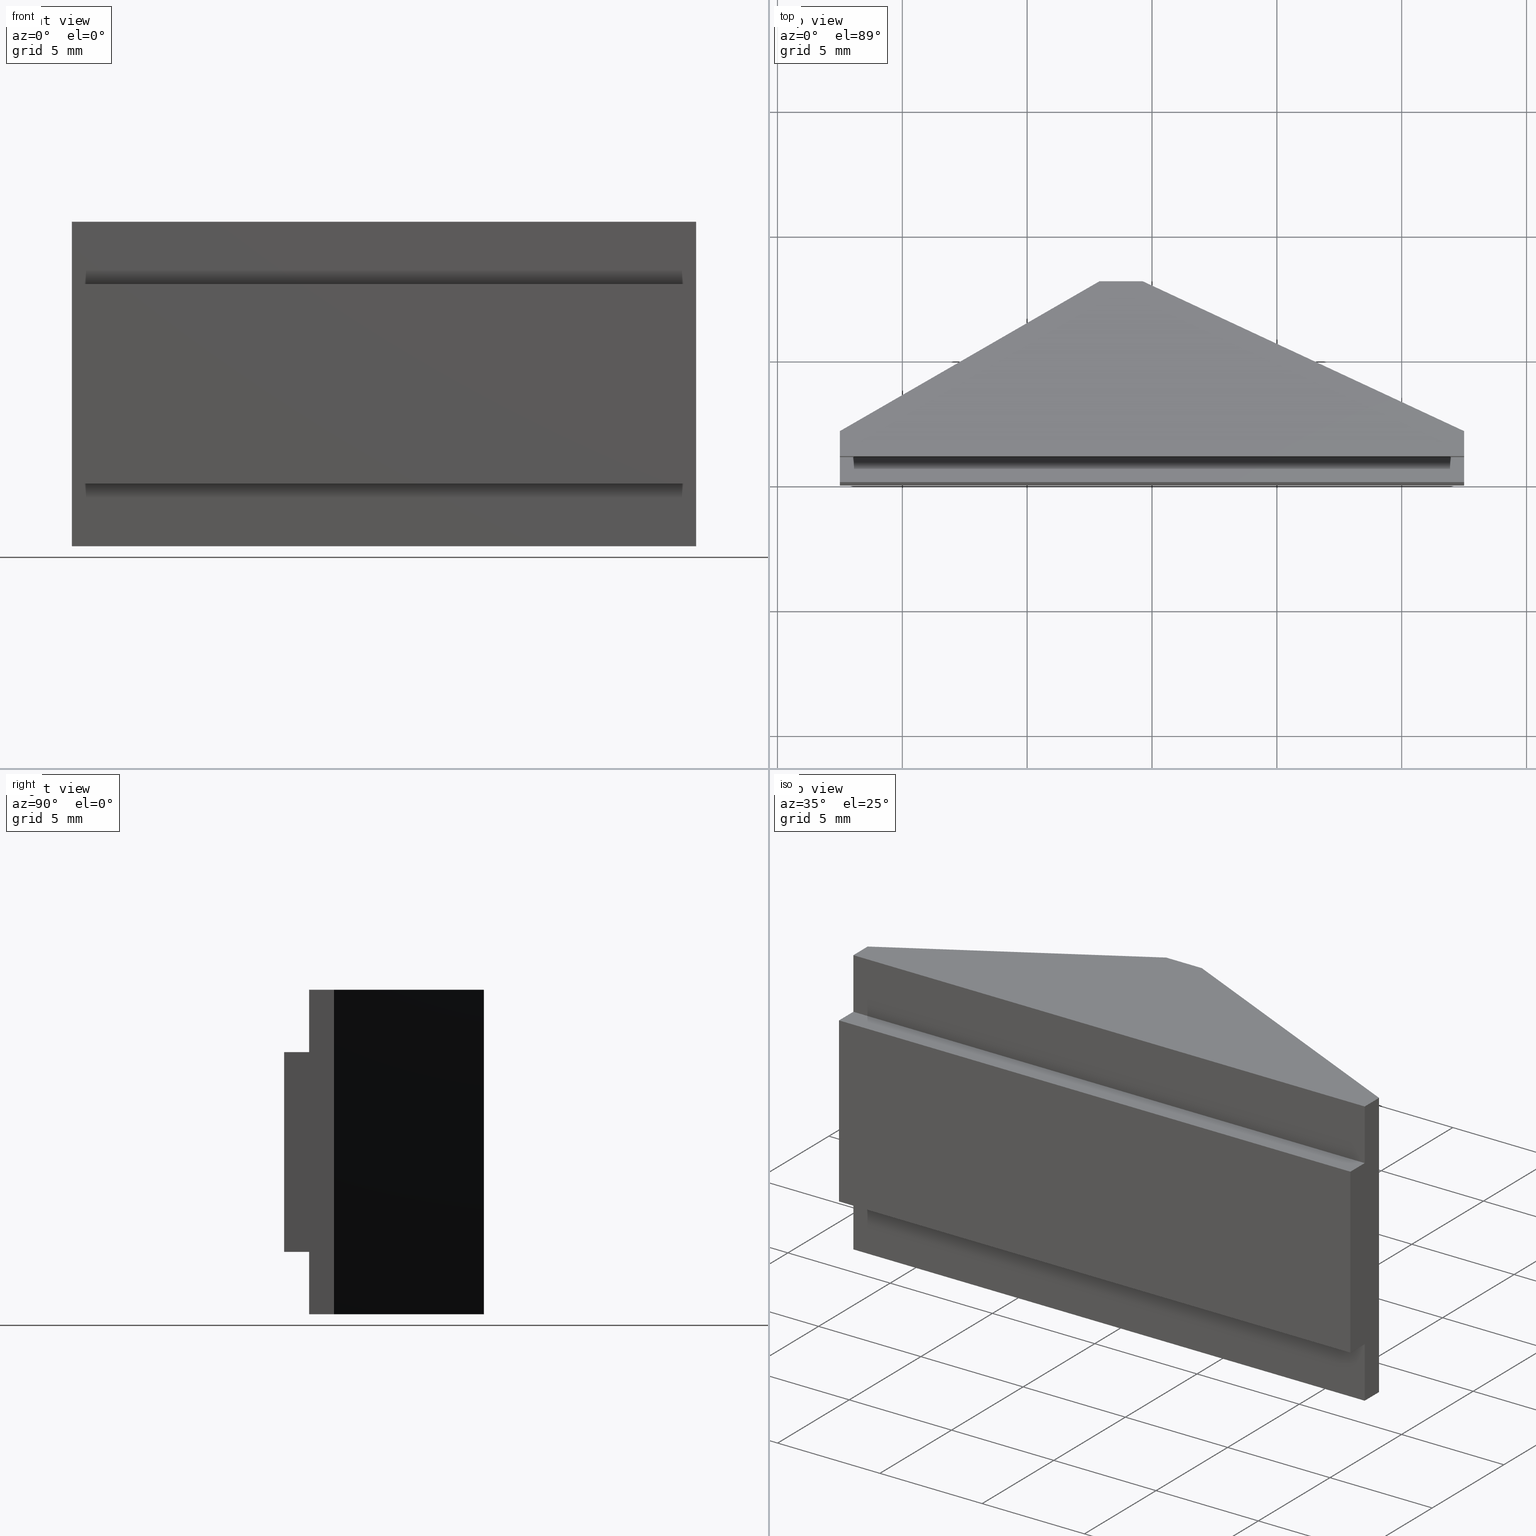
[diagram: canonical four-view strip — front | top / right | iso, engineering-drawing reading convention]
A machine part, canonical four-view strip (front | top / right | iso — engineering-drawing reading convention). The complete STEP part file that produces these views, byte-faithful:
ISO-10303-21;
HEADER;
/* Generated by software containing ST-Developer
 * from STEP Tools, Inc. (www.steptools.com) 
 */

FILE_DESCRIPTION(
/* description */ ('WKZ-0462'),
/* implementation_level */ '2;1');

FILE_NAME(
/* name */ 'E_3_01_06_07_00_WKZ-0462.stp',
/* time_stamp */ '2025-11-12T14:13:11+01:00',
/* author */ ('d.fischer'),
/* organization */ (''),
/* preprocessor_version */ 'ST-DEVELOPER v20',
/* originating_system */ 'Autodesk Inventor 2025',
/* authorisation */ '');

FILE_SCHEMA (('AUTOMOTIVE_DESIGN { 1 0 10303 214 3 1 1 }'));
ENDSEC;

DATA;
#10=MECHANICAL_DESIGN_GEOMETRIC_PRESENTATION_REPRESENTATION('',(#13),#390);
#11=SHAPE_REPRESENTATION_RELATIONSHIP('SRR','None',#397,#12);
#12=ADVANCED_BREP_SHAPE_REPRESENTATION('',(#14),#389);
#13=STYLED_ITEM('',(#406),#14);
#14=MANIFOLD_SOLID_BREP('Volumenk\X\F6rper1',#233);
#15=FACE_OUTER_BOUND('',#27,.T.);
#16=FACE_OUTER_BOUND('',#28,.T.);
#17=FACE_OUTER_BOUND('',#29,.T.);
#18=FACE_OUTER_BOUND('',#30,.T.);
#19=FACE_OUTER_BOUND('',#31,.T.);
#20=FACE_OUTER_BOUND('',#32,.T.);
#21=FACE_OUTER_BOUND('',#33,.T.);
#22=FACE_OUTER_BOUND('',#34,.T.);
#23=FACE_OUTER_BOUND('',#35,.T.);
#24=FACE_OUTER_BOUND('',#36,.T.);
#25=FACE_OUTER_BOUND('',#37,.T.);
#26=FACE_OUTER_BOUND('',#38,.T.);
#27=EDGE_LOOP('',(#149,#150,#151,#152));
#28=EDGE_LOOP('',(#153,#154,#155,#156));
#29=EDGE_LOOP('',(#157,#158,#159,#160));
#30=EDGE_LOOP('',(#161,#162,#163,#164));
#31=EDGE_LOOP('',(#165,#166,#167,#168,#169,#170,#171,#172));
#32=EDGE_LOOP('',(#173,#174,#175,#176,#177,#178,#179,#180));
#33=EDGE_LOOP('',(#181,#182,#183,#184,#185,#186));
#34=EDGE_LOOP('',(#187,#188,#189,#190,#191,#192));
#35=EDGE_LOOP('',(#193,#194,#195,#196));
#36=EDGE_LOOP('',(#197,#198,#199,#200));
#37=EDGE_LOOP('',(#201,#202,#203,#204));
#38=EDGE_LOOP('',(#205,#206,#207,#208));
#39=LINE('',#328,#69);
#40=LINE('',#330,#70);
#41=LINE('',#332,#71);
#42=LINE('',#333,#72);
#43=LINE('',#336,#73);
#44=LINE('',#338,#74);
#45=LINE('',#339,#75);
#46=LINE('',#343,#76);
#47=LINE('',#345,#77);
#48=LINE('',#347,#78);
#49=LINE('',#348,#79);
#50=LINE('',#351,#80);
#51=LINE('',#353,#81);
#52=LINE('',#354,#82);
#53=LINE('',#356,#83);
#54=LINE('',#358,#84);
#55=LINE('',#360,#85);
#56=LINE('',#361,#86);
#57=LINE('',#364,#87);
#58=LINE('',#366,#88);
#59=LINE('',#367,#89);
#60=LINE('',#368,#90);
#61=LINE('',#371,#91);
#62=LINE('',#373,#92);
#63=LINE('',#374,#93);
#64=LINE('',#377,#94);
#65=LINE('',#379,#95);
#66=LINE('',#380,#96);
#67=LINE('',#382,#97);
#68=LINE('',#384,#98);
#69=VECTOR('',#272,10.);
#70=VECTOR('',#273,10.);
#71=VECTOR('',#274,10.);
#72=VECTOR('',#275,10.);
#73=VECTOR('',#278,10.);
#74=VECTOR('',#279,10.);
#75=VECTOR('',#280,10.);
#76=VECTOR('',#283,10.);
#77=VECTOR('',#284,10.);
#78=VECTOR('',#285,10.);
#79=VECTOR('',#286,10.);
#80=VECTOR('',#289,10.);
#81=VECTOR('',#290,10.);
#82=VECTOR('',#291,10.);
#83=VECTOR('',#294,10.);
#84=VECTOR('',#295,10.);
#85=VECTOR('',#296,10.);
#86=VECTOR('',#297,10.);
#87=VECTOR('',#300,10.);
#88=VECTOR('',#301,10.);
#89=VECTOR('',#302,10.);
#90=VECTOR('',#303,10.);
#91=VECTOR('',#306,10.);
#92=VECTOR('',#307,10.);
#93=VECTOR('',#308,10.);
#94=VECTOR('',#311,10.);
#95=VECTOR('',#312,10.);
#96=VECTOR('',#313,10.);
#97=VECTOR('',#316,10.);
#98=VECTOR('',#319,10.);
#99=VERTEX_POINT('',#326);
#100=VERTEX_POINT('',#327);
#101=VERTEX_POINT('',#329);
#102=VERTEX_POINT('',#331);
#103=VERTEX_POINT('',#335);
#104=VERTEX_POINT('',#337);
#105=VERTEX_POINT('',#341);
#106=VERTEX_POINT('',#342);
#107=VERTEX_POINT('',#344);
#108=VERTEX_POINT('',#346);
#109=VERTEX_POINT('',#350);
#110=VERTEX_POINT('',#352);
#111=VERTEX_POINT('',#357);
#112=VERTEX_POINT('',#359);
#113=VERTEX_POINT('',#363);
#114=VERTEX_POINT('',#365);
#115=VERTEX_POINT('',#370);
#116=VERTEX_POINT('',#372);
#117=VERTEX_POINT('',#376);
#118=VERTEX_POINT('',#378);
#119=EDGE_CURVE('',#99,#100,#39,.T.);
#120=EDGE_CURVE('',#101,#99,#40,.T.);
#121=EDGE_CURVE('',#102,#101,#41,.T.);
#122=EDGE_CURVE('',#100,#102,#42,.T.);
#123=EDGE_CURVE('',#103,#99,#43,.T.);
#124=EDGE_CURVE('',#104,#103,#44,.T.);
#125=EDGE_CURVE('',#101,#104,#45,.T.);
#126=EDGE_CURVE('',#105,#106,#46,.T.);
#127=EDGE_CURVE('',#107,#105,#47,.T.);
#128=EDGE_CURVE('',#108,#107,#48,.T.);
#129=EDGE_CURVE('',#106,#108,#49,.T.);
#130=EDGE_CURVE('',#106,#109,#50,.T.);
#131=EDGE_CURVE('',#110,#108,#51,.T.);
#132=EDGE_CURVE('',#109,#110,#52,.T.);
#133=EDGE_CURVE('',#105,#104,#53,.T.);
#134=EDGE_CURVE('',#111,#109,#54,.T.);
#135=EDGE_CURVE('',#112,#111,#55,.T.);
#136=EDGE_CURVE('',#102,#112,#56,.T.);
#137=EDGE_CURVE('',#113,#100,#57,.T.);
#138=EDGE_CURVE('',#113,#114,#58,.T.);
#139=EDGE_CURVE('',#110,#114,#59,.T.);
#140=EDGE_CURVE('',#103,#107,#60,.T.);
#141=EDGE_CURVE('',#114,#115,#61,.T.);
#142=EDGE_CURVE('',#115,#116,#62,.T.);
#143=EDGE_CURVE('',#116,#111,#63,.T.);
#144=EDGE_CURVE('',#112,#117,#64,.T.);
#145=EDGE_CURVE('',#117,#118,#65,.T.);
#146=EDGE_CURVE('',#118,#113,#66,.T.);
#147=EDGE_CURVE('',#117,#116,#67,.T.);
#148=EDGE_CURVE('',#118,#115,#68,.T.);
#149=ORIENTED_EDGE('',*,*,#119,.F.);
#150=ORIENTED_EDGE('',*,*,#120,.F.);
#151=ORIENTED_EDGE('',*,*,#121,.F.);
#152=ORIENTED_EDGE('',*,*,#122,.F.);
#153=ORIENTED_EDGE('',*,*,#123,.F.);
#154=ORIENTED_EDGE('',*,*,#124,.F.);
#155=ORIENTED_EDGE('',*,*,#125,.F.);
#156=ORIENTED_EDGE('',*,*,#120,.T.);
#157=ORIENTED_EDGE('',*,*,#126,.F.);
#158=ORIENTED_EDGE('',*,*,#127,.F.);
#159=ORIENTED_EDGE('',*,*,#128,.F.);
#160=ORIENTED_EDGE('',*,*,#129,.F.);
#161=ORIENTED_EDGE('',*,*,#130,.F.);
#162=ORIENTED_EDGE('',*,*,#129,.T.);
#163=ORIENTED_EDGE('',*,*,#131,.F.);
#164=ORIENTED_EDGE('',*,*,#132,.F.);
#165=ORIENTED_EDGE('',*,*,#121,.T.);
#166=ORIENTED_EDGE('',*,*,#125,.T.);
#167=ORIENTED_EDGE('',*,*,#133,.F.);
#168=ORIENTED_EDGE('',*,*,#126,.T.);
#169=ORIENTED_EDGE('',*,*,#130,.T.);
#170=ORIENTED_EDGE('',*,*,#134,.F.);
#171=ORIENTED_EDGE('',*,*,#135,.F.);
#172=ORIENTED_EDGE('',*,*,#136,.F.);
#173=ORIENTED_EDGE('',*,*,#123,.T.);
#174=ORIENTED_EDGE('',*,*,#119,.T.);
#175=ORIENTED_EDGE('',*,*,#137,.F.);
#176=ORIENTED_EDGE('',*,*,#138,.T.);
#177=ORIENTED_EDGE('',*,*,#139,.F.);
#178=ORIENTED_EDGE('',*,*,#131,.T.);
#179=ORIENTED_EDGE('',*,*,#128,.T.);
#180=ORIENTED_EDGE('',*,*,#140,.F.);
#181=ORIENTED_EDGE('',*,*,#132,.T.);
#182=ORIENTED_EDGE('',*,*,#139,.T.);
#183=ORIENTED_EDGE('',*,*,#141,.T.);
#184=ORIENTED_EDGE('',*,*,#142,.T.);
#185=ORIENTED_EDGE('',*,*,#143,.T.);
#186=ORIENTED_EDGE('',*,*,#134,.T.);
#187=ORIENTED_EDGE('',*,*,#122,.T.);
#188=ORIENTED_EDGE('',*,*,#136,.T.);
#189=ORIENTED_EDGE('',*,*,#144,.T.);
#190=ORIENTED_EDGE('',*,*,#145,.T.);
#191=ORIENTED_EDGE('',*,*,#146,.T.);
#192=ORIENTED_EDGE('',*,*,#137,.T.);
#193=ORIENTED_EDGE('',*,*,#135,.T.);
#194=ORIENTED_EDGE('',*,*,#143,.F.);
#195=ORIENTED_EDGE('',*,*,#147,.F.);
#196=ORIENTED_EDGE('',*,*,#144,.F.);
#197=ORIENTED_EDGE('',*,*,#147,.T.);
#198=ORIENTED_EDGE('',*,*,#142,.F.);
#199=ORIENTED_EDGE('',*,*,#148,.F.);
#200=ORIENTED_EDGE('',*,*,#145,.F.);
#201=ORIENTED_EDGE('',*,*,#148,.T.);
#202=ORIENTED_EDGE('',*,*,#141,.F.);
#203=ORIENTED_EDGE('',*,*,#138,.F.);
#204=ORIENTED_EDGE('',*,*,#146,.F.);
#205=ORIENTED_EDGE('',*,*,#124,.T.);
#206=ORIENTED_EDGE('',*,*,#140,.T.);
#207=ORIENTED_EDGE('',*,*,#127,.T.);
#208=ORIENTED_EDGE('',*,*,#133,.T.);
#209=PLANE('',#256);
#210=PLANE('',#257);
#211=PLANE('',#258);
#212=PLANE('',#259);
#213=PLANE('',#260);
#214=PLANE('',#261);
#215=PLANE('',#262);
#216=PLANE('',#263);
#217=PLANE('',#264);
#218=PLANE('',#265);
#219=PLANE('',#266);
#220=PLANE('',#267);
#221=ADVANCED_FACE('',(#15),#209,.F.);
#222=ADVANCED_FACE('',(#16),#210,.F.);
#223=ADVANCED_FACE('',(#17),#211,.F.);
#224=ADVANCED_FACE('',(#18),#212,.F.);
#225=ADVANCED_FACE('',(#19),#213,.T.);
#226=ADVANCED_FACE('',(#20),#214,.T.);
#227=ADVANCED_FACE('',(#21),#215,.T.);
#228=ADVANCED_FACE('',(#22),#216,.T.);
#229=ADVANCED_FACE('',(#23),#217,.T.);
#230=ADVANCED_FACE('',(#24),#218,.T.);
#231=ADVANCED_FACE('',(#25),#219,.T.);
#232=ADVANCED_FACE('',(#26),#220,.T.);
#233=CLOSED_SHELL('',(#221,#222,#223,#224,#225,#226,#227,#228,#229,#230,
#231,#232));
#234=DERIVED_UNIT_ELEMENT(#237,1.);
#235=DERIVED_UNIT_ELEMENT(#392,-3.);
#236=DIMENSIONAL_EXPONENTS(0.,1.,0.,0.,0.,0.,0.);
#237=(
CONVERSION_BASED_UNIT('gram',#239)
MASS_UNIT()
NAMED_UNIT(#236)
);
#238=(
MASS_UNIT()
NAMED_UNIT(*)
SI_UNIT(.KILO.,.GRAM.)
);
#239=MASS_MEASURE_WITH_UNIT(MASS_MEASURE(0.001),#238);
#240=DERIVED_UNIT((#234,#235));
#241=MEASURE_REPRESENTATION_ITEM('density measure',
POSITIVE_RATIO_MEASURE(1.),#240);
#242=PROPERTY_DEFINITION_REPRESENTATION(#247,#244);
#243=PROPERTY_DEFINITION_REPRESENTATION(#248,#245);
#244=REPRESENTATION('material name',(#246),#389);
#245=REPRESENTATION('density',(#241),#389);
#246=DESCRIPTIVE_REPRESENTATION_ITEM('Generisch','Generisch');
#247=PROPERTY_DEFINITION('material property','material name',#399);
#248=PROPERTY_DEFINITION('material property','density of part',#399);
#249=DATE_TIME_ROLE('creation_date');
#250=APPLIED_DATE_AND_TIME_ASSIGNMENT(#251,#249,(#399));
#251=DATE_AND_TIME(#252,#253);
#252=CALENDAR_DATE(2024,24,6);
#253=LOCAL_TIME(0,0,0.,#254);
#254=COORDINATED_UNIVERSAL_TIME_OFFSET(0,0,.BEHIND.);
#255=AXIS2_PLACEMENT_3D('',#324,#268,#269);
#256=AXIS2_PLACEMENT_3D('',#325,#270,#271);
#257=AXIS2_PLACEMENT_3D('',#334,#276,#277);
#258=AXIS2_PLACEMENT_3D('',#340,#281,#282);
#259=AXIS2_PLACEMENT_3D('',#349,#287,#288);
#260=AXIS2_PLACEMENT_3D('',#355,#292,#293);
#261=AXIS2_PLACEMENT_3D('',#362,#298,#299);
#262=AXIS2_PLACEMENT_3D('',#369,#304,#305);
#263=AXIS2_PLACEMENT_3D('',#375,#309,#310);
#264=AXIS2_PLACEMENT_3D('',#381,#314,#315);
#265=AXIS2_PLACEMENT_3D('',#383,#317,#318);
#266=AXIS2_PLACEMENT_3D('',#385,#320,#321);
#267=AXIS2_PLACEMENT_3D('',#386,#322,#323);
#268=DIRECTION('axis',(0.,0.,1.));
#269=DIRECTION('refdir',(1.,0.,0.));
#270=DIRECTION('center_axis',(0.,1.,1.66533453693773E-16));
#271=DIRECTION('ref_axis',(0.,1.66533453693773E-16,-1.));
#272=DIRECTION('',(0.,1.66533453693773E-16,-1.));
#273=DIRECTION('',(1.,0.,0.));
#274=DIRECTION('',(0.,-1.66533453693773E-16,1.));
#275=DIRECTION('',(-1.,0.,0.));
#276=DIRECTION('center_axis',(0.,0.,1.));
#277=DIRECTION('ref_axis',(0.,1.,0.));
#278=DIRECTION('',(0.,1.,0.));
#279=DIRECTION('',(1.,0.,0.));
#280=DIRECTION('',(0.,-1.,0.));
#281=DIRECTION('center_axis',(0.,0.,-1.));
#282=DIRECTION('ref_axis',(0.,-1.,0.));
#283=DIRECTION('',(0.,1.,0.));
#284=DIRECTION('',(-1.,0.,0.));
#285=DIRECTION('',(0.,-1.,0.));
#286=DIRECTION('',(1.,0.,0.));
#287=DIRECTION('center_axis',(0.,1.,-1.66533453693773E-16));
#288=DIRECTION('ref_axis',(0.,-1.66533453693773E-16,-1.));
#289=DIRECTION('',(0.,1.66533453693773E-16,1.));
#290=DIRECTION('',(0.,-1.66533453693773E-16,-1.));
#291=DIRECTION('',(1.,0.,0.));
#292=DIRECTION('center_axis',(-1.,0.,0.));
#293=DIRECTION('ref_axis',(0.,-1.,0.));
#294=DIRECTION('',(0.,0.,-1.));
#295=DIRECTION('',(0.,-1.,0.));
#296=DIRECTION('',(0.,0.,1.));
#297=DIRECTION('',(0.,1.,0.));
#298=DIRECTION('center_axis',(1.,0.,0.));
#299=DIRECTION('ref_axis',(0.,1.,0.));
#300=DIRECTION('',(0.,-1.,0.));
#301=DIRECTION('',(0.,0.,1.));
#302=DIRECTION('',(0.,1.,0.));
#303=DIRECTION('',(0.,0.,1.));
#304=DIRECTION('center_axis',(0.,0.,1.));
#305=DIRECTION('ref_axis',(1.,0.,0.));
#306=DIRECTION('',(-0.90630778703665,0.422618261740699,0.));
#307=DIRECTION('',(-1.,0.,0.));
#308=DIRECTION('',(-0.866025403784438,-0.5,0.));
#309=DIRECTION('center_axis',(0.,0.,-1.));
#310=DIRECTION('ref_axis',(-1.,0.,0.));
#311=DIRECTION('',(0.866025403784438,0.5,0.));
#312=DIRECTION('',(1.,0.,0.));
#313=DIRECTION('',(0.90630778703665,-0.422618261740699,0.));
#314=DIRECTION('center_axis',(-0.5,0.866025403784438,0.));
#315=DIRECTION('ref_axis',(-0.866025403784438,-0.5,0.));
#316=DIRECTION('',(0.,0.,1.));
#317=DIRECTION('center_axis',(0.,1.,0.));
#318=DIRECTION('ref_axis',(-1.,0.,0.));
#319=DIRECTION('',(0.,0.,1.));
#320=DIRECTION('center_axis',(0.422618261740699,0.90630778703665,0.));
#321=DIRECTION('ref_axis',(-0.90630778703665,0.422618261740699,0.));
#322=DIRECTION('center_axis',(0.,-1.,0.));
#323=DIRECTION('ref_axis',(1.,0.,0.));
#324=CARTESIAN_POINT('',(0.,0.,0.));
#325=CARTESIAN_POINT('Origin',(0.,1.,-4.));
#326=CARTESIAN_POINT('',(12.5,1.,-4.));
#327=CARTESIAN_POINT('',(12.5,1.,-6.5));
#328=CARTESIAN_POINT('',(12.5,1.,-2.));
#329=CARTESIAN_POINT('',(-12.5,1.,-4.));
#330=CARTESIAN_POINT('',(0.,1.,-4.));
#331=CARTESIAN_POINT('',(-12.5,1.,-6.5));
#332=CARTESIAN_POINT('',(-12.5,1.,-2.));
#333=CARTESIAN_POINT('',(0.,1.,-6.5));
#334=CARTESIAN_POINT('Origin',(0.,1.38777878078145E-16,-4.));
#335=CARTESIAN_POINT('',(12.5,1.22464679914736E-16,-4.));
#336=CARTESIAN_POINT('',(12.5,6.24500451351651E-16,-4.));
#337=CARTESIAN_POINT('',(-12.5,1.22464679914736E-16,-4.));
#338=CARTESIAN_POINT('',(-6.25,1.11022302462516E-15,-4.));
#339=CARTESIAN_POINT('',(-12.5,1.,-4.));
#340=CARTESIAN_POINT('Origin',(0.,1.,4.));
#341=CARTESIAN_POINT('',(-12.5,1.22464679914736E-16,4.));
#342=CARTESIAN_POINT('',(-12.5,1.,4.));
#343=CARTESIAN_POINT('',(-12.5,1.5,4.));
#344=CARTESIAN_POINT('',(12.5,1.22464679914736E-16,4.));
#345=CARTESIAN_POINT('',(-6.25,1.11022302462516E-15,4.));
#346=CARTESIAN_POINT('',(12.5,1.,4.));
#347=CARTESIAN_POINT('',(12.5,0.500000000000001,4.));
#348=CARTESIAN_POINT('',(0.,1.,4.));
#349=CARTESIAN_POINT('Origin',(0.,1.,6.5));
#350=CARTESIAN_POINT('',(-12.5,1.,6.5));
#351=CARTESIAN_POINT('',(-12.5,1.,3.25));
#352=CARTESIAN_POINT('',(12.5,1.,6.5));
#353=CARTESIAN_POINT('',(12.5,1.,3.25));
#354=CARTESIAN_POINT('',(0.,1.,6.5));
#355=CARTESIAN_POINT('Origin',(-12.5,2.,0.));
#356=CARTESIAN_POINT('',(-12.5,1.11022302462516E-15,0.));
#357=CARTESIAN_POINT('',(-12.5,2.,6.5));
#358=CARTESIAN_POINT('',(-12.5,2.,6.5));
#359=CARTESIAN_POINT('',(-12.5,2.,-6.5));
#360=CARTESIAN_POINT('',(-12.5,2.,0.));
#361=CARTESIAN_POINT('',(-12.5,2.,-6.5));
#362=CARTESIAN_POINT('Origin',(12.5,1.11022302462516E-15,0.));
#363=CARTESIAN_POINT('',(12.5,2.,-6.5));
#364=CARTESIAN_POINT('',(12.5,1.11022302462516E-15,-6.5));
#365=CARTESIAN_POINT('',(12.5,2.,6.5));
#366=CARTESIAN_POINT('',(12.5,2.,0.));
#367=CARTESIAN_POINT('',(12.5,1.11022302462516E-15,6.5));
#368=CARTESIAN_POINT('',(12.5,1.11022302462516E-15,0.));
#369=CARTESIAN_POINT('Origin',(0.,4.,6.5));
#370=CARTESIAN_POINT('',(-0.367041523057356,8.,6.5));
#371=CARTESIAN_POINT('',(12.5,2.,6.5));
#372=CARTESIAN_POINT('',(-2.10769515458674,8.,6.5));
#373=CARTESIAN_POINT('',(-0.367041523057356,8.,6.5));
#374=CARTESIAN_POINT('',(-2.10769515458674,8.,6.5));
#375=CARTESIAN_POINT('Origin',(0.,4.,-6.5));
#376=CARTESIAN_POINT('',(-2.10769515458674,8.,-6.5));
#377=CARTESIAN_POINT('',(-2.10769515458674,8.,-6.5));
#378=CARTESIAN_POINT('',(-0.367041523057356,8.,-6.5));
#379=CARTESIAN_POINT('',(-0.367041523057356,8.,-6.5));
#380=CARTESIAN_POINT('',(12.5,2.,-6.5));
#381=CARTESIAN_POINT('Origin',(-2.10769515458675,8.,0.));
#382=CARTESIAN_POINT('',(-2.10769515458674,8.,0.));
#383=CARTESIAN_POINT('Origin',(-0.367041523057356,8.,0.));
#384=CARTESIAN_POINT('',(-0.367041523057356,8.,0.));
#385=CARTESIAN_POINT('Origin',(12.5,2.,0.));
#386=CARTESIAN_POINT('Origin',(-12.5,1.11022302462516E-15,0.));
#387=UNCERTAINTY_MEASURE_WITH_UNIT(LENGTH_MEASURE(0.01),#391,
'DISTANCE_ACCURACY_VALUE',
'Maximum model space distance between geometric entities at asserted c
onnectivities');
#388=UNCERTAINTY_MEASURE_WITH_UNIT(LENGTH_MEASURE(0.01),#391,
'DISTANCE_ACCURACY_VALUE',
'Maximum model space distance between geometric entities at asserted c
onnectivities');
#389=(
GEOMETRIC_REPRESENTATION_CONTEXT(3)
GLOBAL_UNCERTAINTY_ASSIGNED_CONTEXT((#387))
GLOBAL_UNIT_ASSIGNED_CONTEXT((#391,#393,#394))
REPRESENTATION_CONTEXT('','3D')
);
#390=(
GEOMETRIC_REPRESENTATION_CONTEXT(3)
GLOBAL_UNCERTAINTY_ASSIGNED_CONTEXT((#388))
GLOBAL_UNIT_ASSIGNED_CONTEXT((#391,#393,#394))
REPRESENTATION_CONTEXT('','3D')
);
#391=(
LENGTH_UNIT()
NAMED_UNIT(*)
SI_UNIT(.MILLI.,.METRE.)
);
#392=(
LENGTH_UNIT()
NAMED_UNIT(*)
SI_UNIT(.CENTI.,.METRE.)
);
#393=(
NAMED_UNIT(*)
PLANE_ANGLE_UNIT()
SI_UNIT($,.RADIAN.)
);
#394=(
NAMED_UNIT(*)
SI_UNIT($,.STERADIAN.)
SOLID_ANGLE_UNIT()
);
#395=SHAPE_DEFINITION_REPRESENTATION(#396,#397);
#396=PRODUCT_DEFINITION_SHAPE('',$,#399);
#397=SHAPE_REPRESENTATION('',(#255),#389);
#398=PRODUCT_DEFINITION_CONTEXT('part definition',#403,'design');
#399=PRODUCT_DEFINITION('E_3_01_06_07_00_WKZ-0462',
'E_3_01_06_07_00_WKZ-0462',#400,#398);
#400=PRODUCT_DEFINITION_FORMATION('',$,#405);
#401=PRODUCT_RELATED_PRODUCT_CATEGORY('E_3_01_06_07_00_WKZ-0462',
'E_3_01_06_07_00_WKZ-0462',(#405));
#402=APPLICATION_PROTOCOL_DEFINITION('international standard',
'automotive_design',2009,#403);
#403=APPLICATION_CONTEXT(
'Core Data for Automotive Mechanical Design Process');
#404=PRODUCT_CONTEXT('part definition',#403,'mechanical');
#405=PRODUCT('E_3_01_06_07_00_WKZ-0462','E_3_01_06_07_00_WKZ-0462',
'WKZ-0462',(#404));
#406=PRESENTATION_STYLE_ASSIGNMENT((#407));
#407=SURFACE_STYLE_USAGE(.BOTH.,#410);
#408=SURFACE_STYLE_RENDERING_WITH_PROPERTIES($,#414,(#409));
#409=SURFACE_STYLE_TRANSPARENT(0.);
#410=SURFACE_SIDE_STYLE('',(#411,#408));
#411=SURFACE_STYLE_FILL_AREA(#412);
#412=FILL_AREA_STYLE('',(#413));
#413=FILL_AREA_STYLE_COLOUR('',#414);
#414=COLOUR_RGB('',0.749019607843137,0.749019607843137,0.749019607843137);
ENDSEC;
END-ISO-10303-21;
